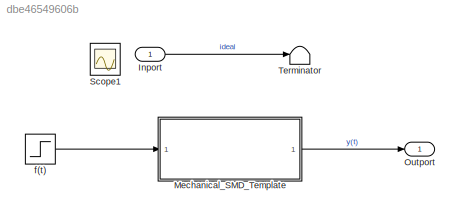
MODEL slx_dbe46549606b
KIND model
CONFIG AbsTol = auto
CONFIG EnableMultiTasking = off
CONFIG FixedStep = auto
CONFIG MaxStep = 0.01
CONFIG MinStep = auto
CONFIG RelTol = 1e-3
CONFIG SampleTimeConstraint = Unconstrained
CONFIG SolverName = VariableStepAuto
CONFIG StartTime = 0.0
CONFIG StopTime = 150
WORKSPACE source: mxarray member
WORKSPACE b = 0.5
WORKSPACE k = 1
WORKSPACE m = 10
BLOCK [Inport] Inport
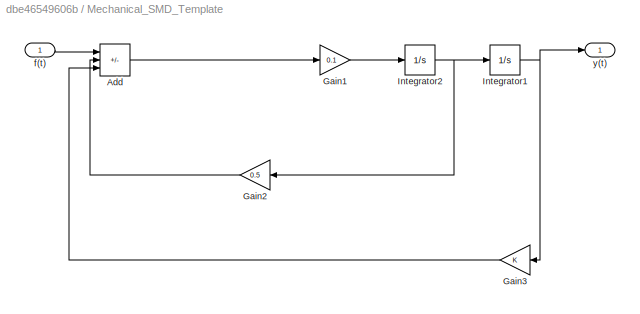
BLOCK [SubSystem] Mechanical_SMD_Template
BLOCK [Sum] Mechanical_SMD_Template/Add
  IconShape = rectangular
  Inputs = +--
BLOCK [Gain] Mechanical_SMD_Template/Gain1
  Gain = 0.1
BLOCK [Gain] Mechanical_SMD_Template/Gain2
  Gain = 0.5
  NameLocation = top
BLOCK [Gain] Mechanical_SMD_Template/Gain3
  NameLocation = top
BLOCK [Integrator] Mechanical_SMD_Template/Integrator1
BLOCK [Integrator] Mechanical_SMD_Template/Integrator2
BLOCK [Inport] Mechanical_SMD_Template/f(t)
BLOCK [Outport] Mechanical_SMD_Template/y(t)
BLOCK [Outport] Outport
BLOCK [Scope] Scope1
  Floating = off
  IOType = viewer
  NumInputPorts = 1
  ScopeSpecificationString = Simulink.scopes.TimeScopeBlockCfg('CurrentConfiguration', extmgr.ConfigurationSet(extmgr.Configuration('Core','General UI',true),extmgr.Configuration('Core','Source UI',true),extmgr.Configuration('Sources','WiredSimulink',true,'DataLoggingVariableName','ScopeData1'),extmgr.Configuration('Visuals','Time Domain',true,'SerializedDisplays',{struct('MinYLimReal','0.10159','MaxYLimReal','1.98871','YLabe...<+1385ch>
BLOCK [Terminator] Terminator
BLOCK [Step] f(t)
  SampleTime = 0
LINE Inport:1 -> Terminator:1
LINE Mechanical_SMD_Template/Add:1 -> Mechanical_SMD_Template/Gain1:1
LINE Mechanical_SMD_Template/Gain1:1 -> Mechanical_SMD_Template/Integrator2:1
LINE Mechanical_SMD_Template/Gain2:1 -> Mechanical_SMD_Template/Add:2
LINE Mechanical_SMD_Template/Gain3:1 -> Mechanical_SMD_Template/Add:3
NET Mechanical_SMD_Template/Integrator1:1 -> Mechanical_SMD_Template/Gain3:1, Mechanical_SMD_Template/y(t):1
NET Mechanical_SMD_Template/Integrator2:1 -> Mechanical_SMD_Template/Gain2:1, Mechanical_SMD_Template/Integrator1:1
LINE Mechanical_SMD_Template/f(t):1 -> Mechanical_SMD_Template/Add:1
LINE Mechanical_SMD_Template:1 -> Outport:1
LINE f(t):1 -> Mechanical_SMD_Template:1
note: NET lines group one-source signal fan-out (src -> all destinations, sorted); 1:1 wires keep LINE
